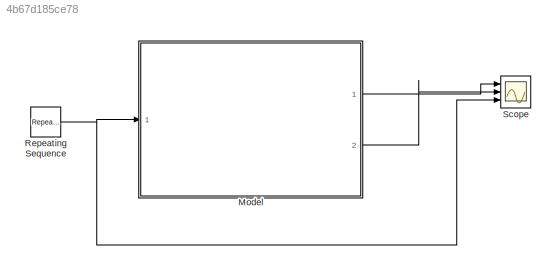
MODEL slx_4b67d185ce78
KIND model
BLOCK [ModelReference] Model
  CopyOfModelName = quarterVehicleMdl.slx
  DefaultDataLogging = on
  ModelNameDialog = quarterVehicleMdl.slx
  ModelReferenceVersion = 1.4
  Ports = [1, 2]
BLOCK [Reference] Repeating Sequence  REF=simulink/Sources/Repeating
Sequence
  Ports = [0, 1]
  SourceBlock = simulink/Sources/Repeating\nSequence
  SourceType = Repeating table
  rep_seq_t = [0 2]
  rep_seq_y = [0 1]
BLOCK [Scope] Scope
  DataFormat = StructureWithTime
  Floating = off
  NumInputPorts = 3
  Ports = [3]
  SampleTime = 0
  ShowLegends = off
  YMax = 5~5~5
  YMin = -5~-5~-5
LINE Model:1 -> Scope:1
LINE Model:2 -> Scope:2
NET Repeating Sequence:1 -> Model:1, Scope:3
note: NET lines group one-source signal fan-out (src -> all destinations, sorted); 1:1 wires keep LINE
